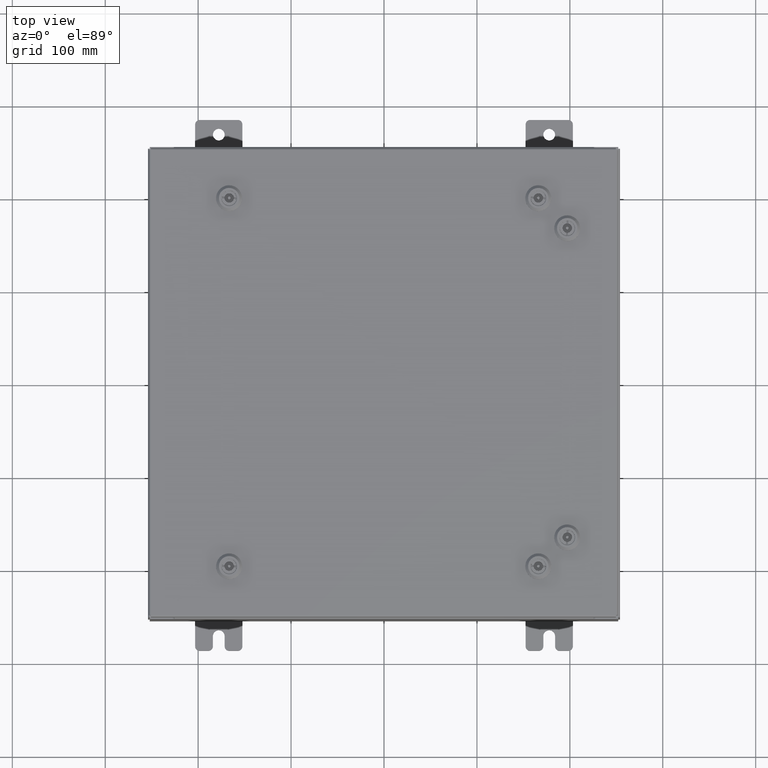
[diagram: clean part render]
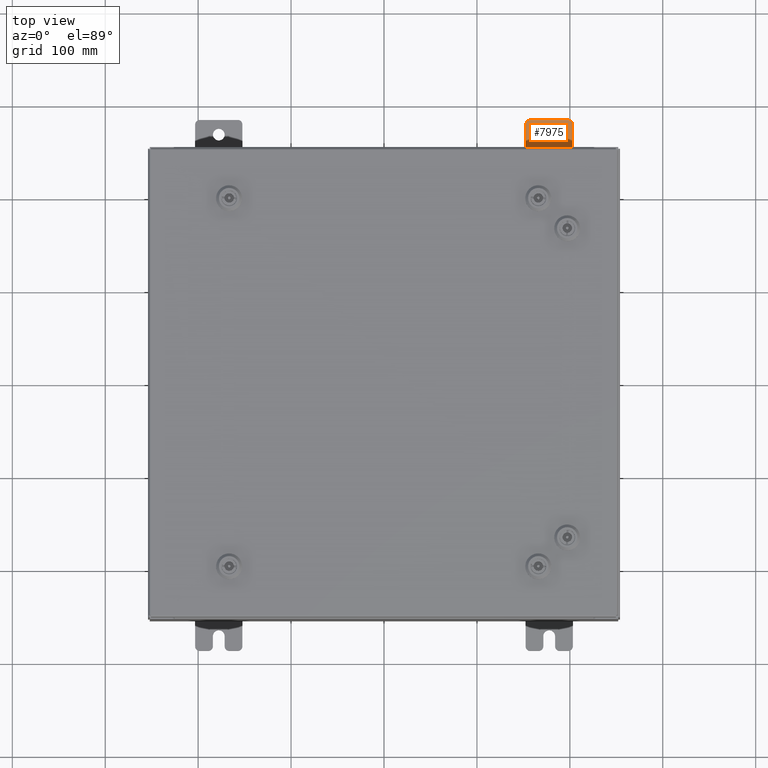
[diagram: same view with one face highlighted and labeled with its STEP entity id]
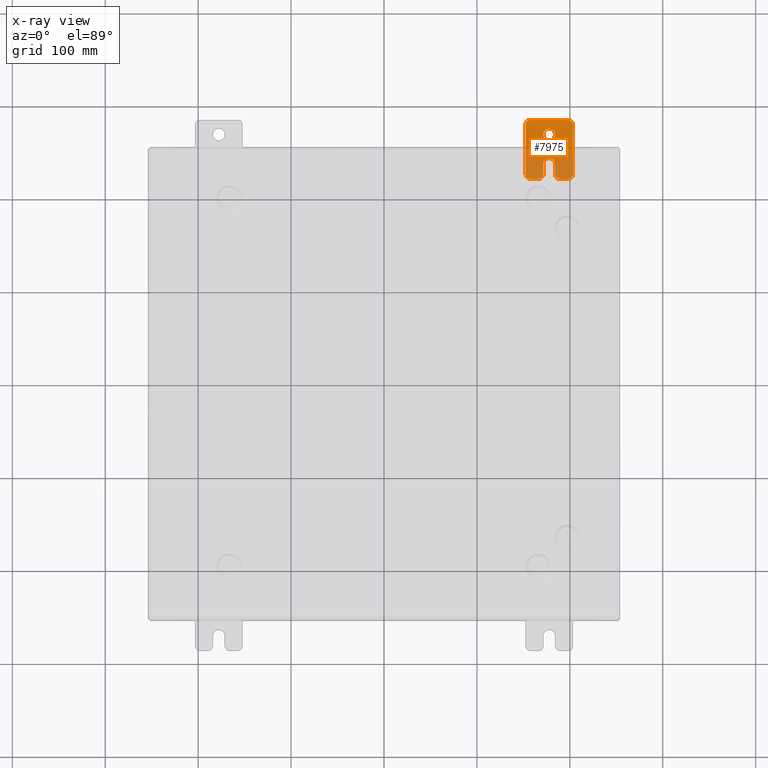
[diagram: x-ray of the same camera — body ghosted, the highlighted face saturated]
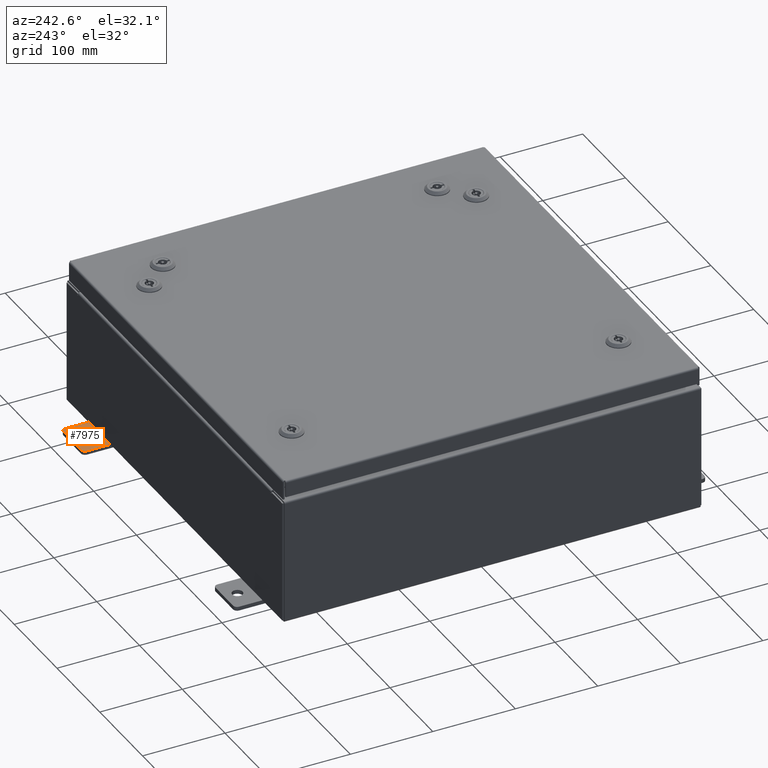
[diagram: same view with one face highlighted and labeled with its STEP entity id]
A machine part, top view. The second image highlights one B-rep face of the part: STEP entity #7975.
The next image is the same camera in x-ray: the body ghosted, the highlighted face saturated — about 52% of this face is hidden behind the body in this view.
A second angle (auxiliary view) of the same face is appended — the face is thin or edge-on in the first view.
In plain terms, the highlighted planar face has unit normal (0, 0, 1).
Its self-contained STEP definition (entity closure, byte-faithful):
#821 = VERTEX_POINT ( 'NONE', #26059 ) ;
#1160 = DIRECTION ( 'NONE',  ( 0.0000000000000000000, -1.639108796198553600E-015, -1.000000000000000000 ) ) ;
#1180 = CARTESIAN_POINT ( 'NONE',  ( 4.780733988912460100E-016, -0.6249999999999988900, -0.2499999999999998100 ) ) ;
#1798 = VERTEX_POINT ( 'NONE', #61290 ) ;
#2824 = CIRCLE ( 'NONE', #23885, 0.1900000000000011100 ) ;
#3520 = ORIENTED_EDGE ( 'NONE', *, *, #30435, .T. ) ;
#4049 = CARTESIAN_POINT ( 'NONE',  ( 0.0000000000000000000, -1.060000000000002300, -0.4400000000000007800 ) ) ;
#4223 = ORIENTED_EDGE ( 'NONE', *, *, #29663, .F. ) ;
#4388 = LINE ( 'NONE', #9363, #28678 ) ;
#4519 = ORIENTED_EDGE ( 'NONE', *, *, #44856, .T. ) ;
#6274 = VERTEX_POINT ( 'NONE', #6809 ) ;
#6766 = AXIS2_PLACEMENT_3D ( 'NONE', #43286, #14298, #48183 ) ;
#6778 = DIRECTION ( 'NONE',  ( 0.0000000000000000000, -1.639108796198553600E-015, -1.000000000000000000 ) ) ;
#6809 = CARTESIAN_POINT ( 'NONE',  ( 0.0000000000000000000, 1.249999999999993600, -0.8100000000000091600 ) ) ;
#7599 = ORIENTED_EDGE ( 'NONE', *, *, #50453, .T. ) ;
#7975 = ADVANCED_FACE ( 'NONE', ( #8590, #57082 ), #43334, .T. ) ;
#8191 = DIRECTION ( 'NONE',  ( -1.000000000000000000, 6.523827964459549700E-016, 5.163192708025532000E-017 ) ) ;
#8590 = FACE_BOUND ( 'NONE', #30267, .T. ) ;
#8962 = DIRECTION ( 'NONE',  ( 0.0000000000000000000, 0.0000000000000000000, -1.000000000000000000 ) ) ;
#9087 = EDGE_CURVE ( 'NONE', #6274, #31138, #13817, .T. ) ;
#9363 = CARTESIAN_POINT ( 'NONE',  ( 6.829619984160658000E-017, -1.250000000000004400, 0.2500000000000008900 ) ) ;
#10493 = LINE ( 'NONE', #60631, #36221 ) ;
#10672 = CARTESIAN_POINT ( 'NONE',  ( 0.0000000000000000000, -1.250000000000004400, -0.8100000000000047200 ) ) ;
#11198 = EDGE_CURVE ( 'NONE', #33541, #1798, #26561, .T. ) ;
#11566 = EDGE_LOOP ( 'NONE', ( #4519, #44880, #52484, #29814, #21300, #29756, #3520, #54408, #26317, #43902, #25421, #35301, #13361, #7599 ) ) ;
#13137 = DIRECTION ( 'NONE',  ( 0.0000000000000000000, 1.000000000000000000, -1.639108796198558100E-015 ) ) ;
#13361 = ORIENTED_EDGE ( 'NONE', *, *, #9087, .T. ) ;
#13672 = CARTESIAN_POINT ( 'NONE',  ( 0.0000000000000000000, -1.250000000000002200, 0.8099999999999981700 ) ) ;
#13817 = LINE ( 'NONE', #24225, #26681 ) ;
#14234 = DIRECTION ( 'NONE',  ( 6.556435184794182400E-016, 1.000000000000000000, 0.0000000000000000000 ) ) ;
#14298 = DIRECTION ( 'NONE',  ( 1.000000000000000000, 0.0000000000000000000, -5.163192708025532000E-017 ) ) ;
#14346 = DIRECTION ( 'NONE',  ( 1.000000000000000000, 0.0000000000000000000, 0.0000000000000000000 ) ) ;
#14513 = DIRECTION ( 'NONE',  ( 0.0000000000000000000, 1.639108796198553600E-015, 1.000000000000000000 ) ) ;
#14812 = CARTESIAN_POINT ( 'NONE',  ( 0.0000000000000000000, 1.059999999999993600, -0.8100000000000091600 ) ) ;
#15660 = EDGE_CURVE ( 'NONE', #821, #58904, #2824, .T. ) ;
#16377 = DIRECTION ( 'NONE',  ( 0.0000000000000000000, -1.000000000000000000, 1.639108796198558100E-015 ) ) ;
#16733 = VECTOR ( 'NONE', #35029, 39.37007874015748100 ) ;
#17314 = VERTEX_POINT ( 'NONE', #44364 ) ;
#17474 = CIRCLE ( 'NONE', #37881, 0.1900000000000011400 ) ;
#18077 = DIRECTION ( 'NONE',  ( 1.000000000000000000, 0.0000000000000000000, 0.0000000000000000000 ) ) ;
#18855 = VERTEX_POINT ( 'NONE', #38347 ) ;
#19222 = CIRCLE ( 'NONE', #6766, 0.2499999999999999200 ) ;
#19438 = CARTESIAN_POINT ( 'NONE',  ( 0.0000000000000000000, 1.059999999999998100, 0.9999999999999958900 ) ) ;
#19585 = AXIS2_PLACEMENT_3D ( 'NONE', #27008, #60896, #31859 ) ;
#19674 = DIRECTION ( 'NONE',  ( 0.0000000000000000000, 0.0000000000000000000, -1.000000000000000000 ) ) ;
#19771 = AXIS2_PLACEMENT_3D ( 'NONE', #26484, #60378, #31361 ) ;
#20325 = CIRCLE ( 'NONE', #47251, 0.1900000000000011100 ) ;
#20631 = EDGE_CURVE ( 'NONE', #1798, #6274, #27647, .T. ) ;
#21300 = ORIENTED_EDGE ( 'NONE', *, *, #61233, .T. ) ;
#23653 = VERTEX_POINT ( 'NONE', #50178 ) ;
#23885 = AXIS2_PLACEMENT_3D ( 'NONE', #24328, #58236, #29239 ) ;
#24225 = CARTESIAN_POINT ( 'NONE',  ( 0.0000000000000000000, 1.249999999999993600, -1.000000000000010000 ) ) ;
#24328 = CARTESIAN_POINT ( 'NONE',  ( 0.0000000000000000000, -1.060000000000002300, 0.8099999999999981700 ) ) ;
#25051 = VECTOR ( 'NONE', #13137, 39.37007874015748100 ) ;
#25384 = DIRECTION ( 'NONE',  ( 1.000000000000000000, 0.0000000000000000000, -5.163192708025532000E-017 ) ) ;
#25421 = ORIENTED_EDGE ( 'NONE', *, *, #11198, .T. ) ;
#25507 = EDGE_CURVE ( 'NONE', #58904, #18855, #38895, .T. ) ;
#26057 = CARTESIAN_POINT ( 'NONE',  ( 0.0000000000000000000, -1.250000000000002200, 0.9999999999999992200 ) ) ;
#26059 = CARTESIAN_POINT ( 'NONE',  ( 0.0000000000000000000, -1.060000000000002300, 0.9999999999999992200 ) ) ;
#26317 = ORIENTED_EDGE ( 'NONE', *, *, #38737, .T. ) ;
#26367 = VERTEX_POINT ( 'NONE', #53486 ) ;
#26484 = CARTESIAN_POINT ( 'NONE',  ( 0.0000000000000000000, 1.059999999999995800, 0.8099999999999938400 ) ) ;
#26561 = LINE ( 'NONE', #41931, #25051 ) ;
#26681 = VECTOR ( 'NONE', #14513, 39.37007874015748100 ) ;
#27008 = CARTESIAN_POINT ( 'NONE',  ( 0.0000000000000000000, -1.060000000000004500, -0.8100000000000047200 ) ) ;
#27570 = CIRCLE ( 'NONE', #62510, 0.2499999999999999200 ) ;
#27647 = CIRCLE ( 'NONE', #43920, 0.1900000000000011100 ) ;
#28018 = CARTESIAN_POINT ( 'NONE',  ( 4.226851808197033000E-016, 0.6249999999999988900, 0.2499999999999999200 ) ) ;
#28678 = VECTOR ( 'NONE', #14234, 39.37007874015748100 ) ;
#29239 = DIRECTION ( 'NONE',  ( 0.0000000000000000000, 0.0000000000000000000, -1.000000000000000000 ) ) ;
#29663 = EDGE_CURVE ( 'NONE', #40410, #23653, #36468, .T. ) ;
#29756 = ORIENTED_EDGE ( 'NONE', *, *, #38115, .T. ) ;
#29814 = ORIENTED_EDGE ( 'NONE', *, *, #30781, .T. ) ;
#30267 = EDGE_LOOP ( 'NONE', ( #61891, #4223 ) ) ;
#30435 = EDGE_CURVE ( 'NONE', #26367, #50334, #40965, .T. ) ;
#30781 = EDGE_CURVE ( 'NONE', #18855, #17314, #17474, .T. ) ;
#30931 = AXIS2_PLACEMENT_3D ( 'NONE', #57767, #14346, #48231 ) ;
#31138 = VERTEX_POINT ( 'NONE', #34548 ) ;
#31361 = DIRECTION ( 'NONE',  ( 0.0000000000000000000, 0.0000000000000000000, -1.000000000000000000 ) ) ;
#31859 = DIRECTION ( 'NONE',  ( 0.0000000000000000000, 0.0000000000000000000, -1.000000000000000000 ) ) ;
#33541 = VERTEX_POINT ( 'NONE', #58693 ) ;
#34548 = CARTESIAN_POINT ( 'NONE',  ( 0.0000000000000000000, 1.249999999999997800, 0.8099999999999938400 ) ) ;
#35029 = DIRECTION ( 'NONE',  ( -6.556435184794182400E-016, -1.000000000000000000, -1.639108796198545600E-016 ) ) ;
#35301 = ORIENTED_EDGE ( 'NONE', *, *, #20631, .T. ) ;
#36221 = VECTOR ( 'NONE', #16377, 39.37007874015748100 ) ;
#36468 = CIRCLE ( 'NONE', #48027, 0.2499999999999999200 ) ;
#36854 = CARTESIAN_POINT ( 'NONE',  ( 0.0000000000000000000, -0.6249999999999988900, 0.2500000000000008900 ) ) ;
#37163 = CARTESIAN_POINT ( 'NONE',  ( 4.780733988912460100E-016, -0.6249999999999988900, 0.0000000000000000000 ) ) ;
#37881 = AXIS2_PLACEMENT_3D ( 'NONE', #47098, #18077, #51974 ) ;
#37938 = DIRECTION ( 'NONE',  ( 1.000000000000000000, 0.0000000000000000000, 0.0000000000000000000 ) ) ;
#38108 = LINE ( 'NONE', #39459, #62384 ) ;
#38115 = EDGE_CURVE ( 'NONE', #47607, #26367, #27570, .T. ) ;
#38347 = CARTESIAN_POINT ( 'NONE',  ( 0.0000000000000000000, -1.250000000000002200, 0.4400000000000018900 ) ) ;
#38737 = EDGE_CURVE ( 'NONE', #46050, #48790, #38108, .T. ) ;
#38895 = LINE ( 'NONE', #26057, #50272 ) ;
#39459 = CARTESIAN_POINT ( 'NONE',  ( 0.0000000000000000000, -1.250000000000002200, 0.9999999999999992200 ) ) ;
#39784 = CIRCLE ( 'NONE', #19771, 0.1900000000000011100 ) ;
#40410 = VERTEX_POINT ( 'NONE', #28018 ) ;
#40965 = LINE ( 'NONE', #1180, #16733 ) ;
#41931 = CARTESIAN_POINT ( 'NONE',  ( 0.0000000000000000000, -1.250000000000006700, -1.000000000000006900 ) ) ;
#42055 = DIRECTION ( 'NONE',  ( -6.523827964459551700E-016, -1.000000000000000000, 0.0000000000000000000 ) ) ;
#43286 = CARTESIAN_POINT ( 'NONE',  ( 4.097771990496394800E-016, 0.6249999999999988900, 0.0000000000000000000 ) ) ;
#43334 = PLANE ( 'NONE',  #30931 ) ;
#43902 = ORIENTED_EDGE ( 'NONE', *, *, #60325, .T. ) ;
#43920 = AXIS2_PLACEMENT_3D ( 'NONE', #14812, #48696, #19674 ) ;
#44364 = CARTESIAN_POINT ( 'NONE',  ( 2.048885995248197400E-016, -1.060000000000002300, 0.2500000000000008900 ) ) ;
#44856 = EDGE_CURVE ( 'NONE', #58359, #821, #10493, .T. ) ;
#44880 = ORIENTED_EDGE ( 'NONE', *, *, #15660, .T. ) ;
#46050 = VERTEX_POINT ( 'NONE', #60847 ) ;
#47098 = CARTESIAN_POINT ( 'NONE',  ( 0.0000000000000000000, -1.060000000000002300, 0.4400000000000018900 ) ) ;
#47251 = AXIS2_PLACEMENT_3D ( 'NONE', #4049, #37938, #8962 ) ;
#47607 = VERTEX_POINT ( 'NONE', #36854 ) ;
#48027 = AXIS2_PLACEMENT_3D ( 'NONE', #54375, #25384, #59266 ) ;
#48183 = DIRECTION ( 'NONE',  ( -5.163192708025533800E-017, 0.0000000000000000000, -1.000000000000000000 ) ) ;
#48231 = DIRECTION ( 'NONE',  ( 0.0000000000000000000, 0.0000000000000000000, -1.000000000000000000 ) ) ;
#48696 = DIRECTION ( 'NONE',  ( 1.000000000000000000, 0.0000000000000000000, 0.0000000000000000000 ) ) ;
#48790 = VERTEX_POINT ( 'NONE', #10672 ) ;
#50178 = CARTESIAN_POINT ( 'NONE',  ( 3.968692172795756700E-016, 0.6249999999999988900, -0.2499999999999999200 ) ) ;
#50272 = VECTOR ( 'NONE', #6778, 39.37007874015748100 ) ;
#50334 = VERTEX_POINT ( 'NONE', #54863 ) ;
#50453 = EDGE_CURVE ( 'NONE', #31138, #58359, #39784, .T. ) ;
#51974 = DIRECTION ( 'NONE',  ( 0.0000000000000000000, 0.0000000000000000000, -1.000000000000000000 ) ) ;
#52484 = ORIENTED_EDGE ( 'NONE', *, *, #25507, .T. ) ;
#52634 = EDGE_CURVE ( 'NONE', #23653, #40410, #19222, .T. ) ;
#53486 = CARTESIAN_POINT ( 'NONE',  ( 4.780733988912460100E-016, -0.6249999999999988900, -0.2499999999999998100 ) ) ;
#54375 = CARTESIAN_POINT ( 'NONE',  ( 4.097771990496394800E-016, 0.6249999999999988900, 0.0000000000000000000 ) ) ;
#54408 = ORIENTED_EDGE ( 'NONE', *, *, #61125, .T. ) ;
#54863 = CARTESIAN_POINT ( 'NONE',  ( 2.048885995248197400E-016, -1.060000000000002300, -0.2499999999999998100 ) ) ;
#57082 = FACE_OUTER_BOUND ( 'NONE', #11566, .T. ) ;
#57533 = CIRCLE ( 'NONE', #19585, 0.1900000000000011100 ) ;
#57767 = CARTESIAN_POINT ( 'NONE',  ( 0.0000000000000000000, 0.0000000000000000000, 0.0000000000000000000 ) ) ;
#58236 = DIRECTION ( 'NONE',  ( 1.000000000000000000, 0.0000000000000000000, 0.0000000000000000000 ) ) ;
#58359 = VERTEX_POINT ( 'NONE', #19438 ) ;
#58693 = CARTESIAN_POINT ( 'NONE',  ( 0.0000000000000000000, -1.060000000000004500, -1.000000000000006900 ) ) ;
#58904 = VERTEX_POINT ( 'NONE', #13672 ) ;
#59266 = DIRECTION ( 'NONE',  ( -5.163192708025533800E-017, 0.0000000000000000000, -1.000000000000000000 ) ) ;
#60325 = EDGE_CURVE ( 'NONE', #48790, #33541, #57533, .T. ) ;
#60378 = DIRECTION ( 'NONE',  ( 1.000000000000000000, 0.0000000000000000000, 0.0000000000000000000 ) ) ;
#60631 = CARTESIAN_POINT ( 'NONE',  ( 0.0000000000000000000, 1.249999999999997800, 0.9999999999999947800 ) ) ;
#60847 = CARTESIAN_POINT ( 'NONE',  ( 0.0000000000000000000, -1.250000000000004400, -0.4399999999999996700 ) ) ;
#60896 = DIRECTION ( 'NONE',  ( 1.000000000000000000, 0.0000000000000000000, 0.0000000000000000000 ) ) ;
#61125 = EDGE_CURVE ( 'NONE', #50334, #46050, #20325, .T. ) ;
#61233 = EDGE_CURVE ( 'NONE', #17314, #47607, #4388, .T. ) ;
#61290 = CARTESIAN_POINT ( 'NONE',  ( 0.0000000000000000000, 1.059999999999993600, -1.000000000000010000 ) ) ;
#61891 = ORIENTED_EDGE ( 'NONE', *, *, #52634, .F. ) ;
#62384 = VECTOR ( 'NONE', #1160, 39.37007874015748100 ) ;
#62510 = AXIS2_PLACEMENT_3D ( 'NONE', #37163, #8191, #42055 ) ;